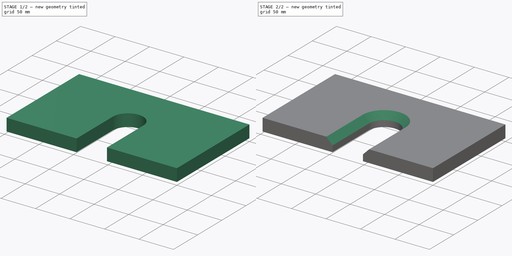
[diagram: build sequence overview — one tinted view per stage of 2, left to right]
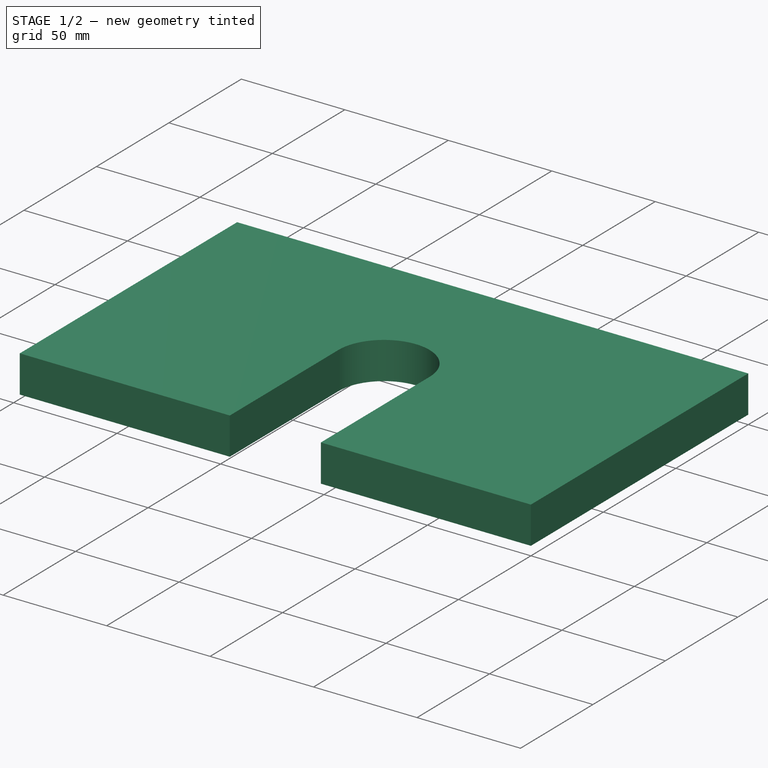
[diagram: stage 1 of 2 — iso view after this stage's code; geometry added in this stage tinted green]
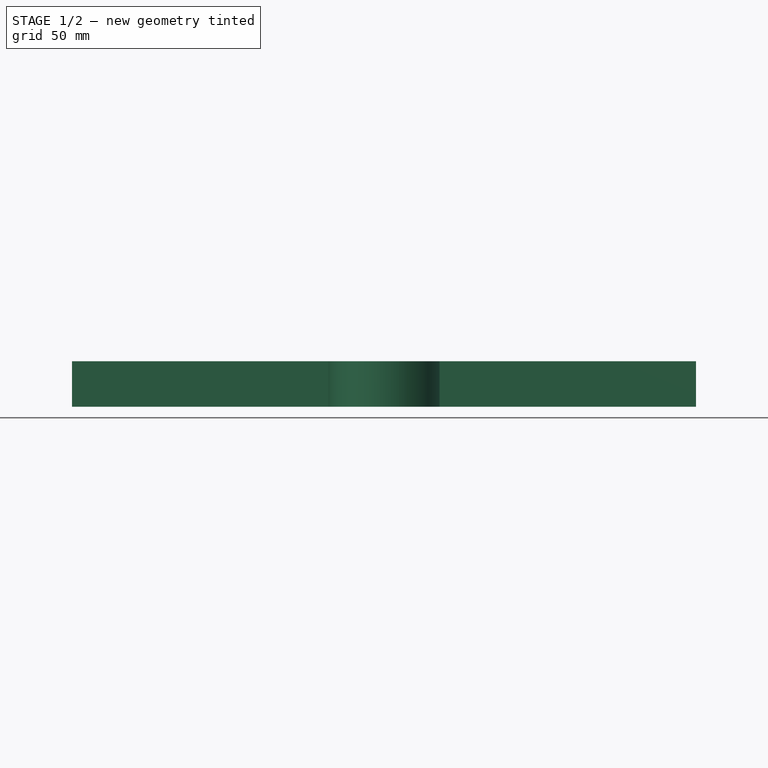
[diagram: stage 1 of 2 — front view after this stage's code; geometry added in this stage tinted green]
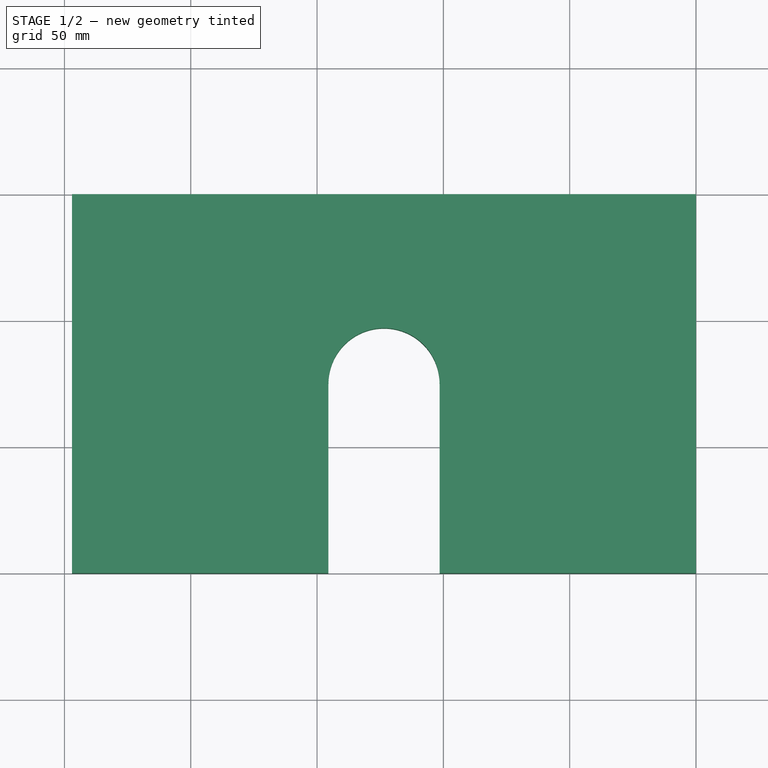
[diagram: stage 1 of 2 — top view after this stage's code; geometry added in this stage tinted green]
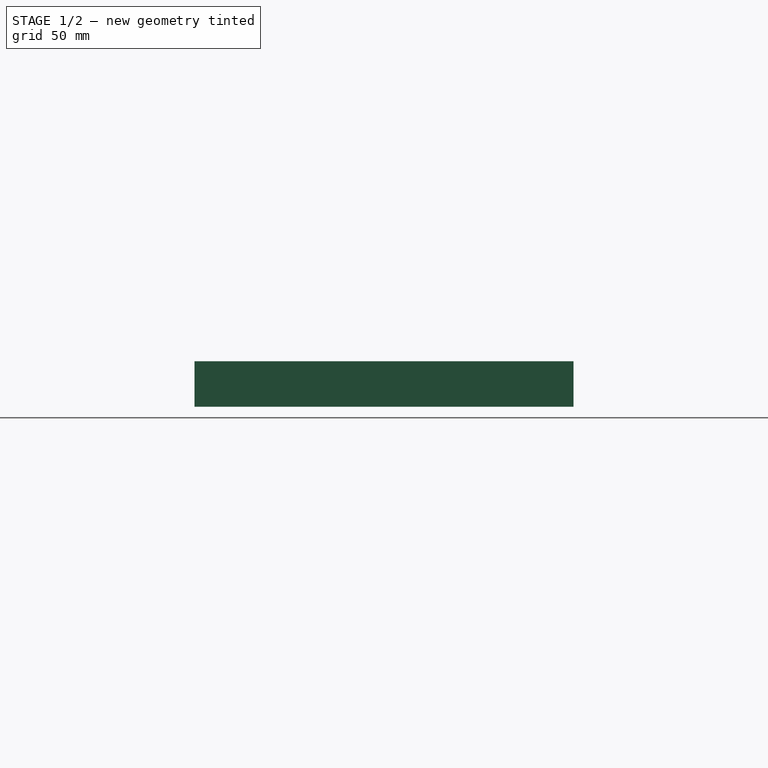
[diagram: stage 1 of 2 — right view after this stage's code; geometry added in this stage tinted green]
FCSTD DOCUMENT  (FreeCAD 0.18R4 (GitTag))
Label: top
License: All rights reserved
LicenseURL: http://en.wikipedia.org/wiki/All_rights_reserved
objects: Sketcher::SketchObject×2, PartDesign::Pad×1, PartDesign::Pocket×1, PartDesign::Chamfer×1, PartDesign::Body×1
note: 8 computed .brp shape members not serialized (recipe doc carries the construction recipe); baked Part::Feature solids carry a one-line shape summary decoded from their .brp

FEATURE [Sketcher::SketchObject] Sketch
  MapMode = 5
  Support = -> [XY_Plane]
  sketch-geometry (4):
    g0: LineSegment StartX=0 StartY=0 StartZ=0 EndX=-247 EndY=0 EndZ=0
    g1: LineSegment StartX=-247 StartY=0 StartZ=0 EndX=-247 EndY=150 EndZ=0
    g2: LineSegment StartX=-247 StartY=150 StartZ=0 EndX=0 EndY=150 EndZ=0
    g3: LineSegment StartX=0 StartY=150 StartZ=0 EndX=0 EndY=0 EndZ=0
  constraints (11):
    c: Coincident(g0,g1)
    c: Coincident(g1,g2)
    c: Coincident(g2,g3)
    c: Coincident(g3,g0)
    c: Horizontal(g0)
    c: Horizontal(g2)
    c: Vertical(g1)
    c: Vertical(g3)
    c: Coincident(g0,g-1)
    c: DistanceY(g3,g3) = 150
    c: DistanceX(g2,g2) = 247
FEATURE [PartDesign::Pad] Pad
  Length = 18
  Length2 = 100
  Profile = -> Sketch
  Type = 0
FEATURE [Sketcher::SketchObject] Sketch001
  MapMode = 5
  Placement = pos=(0,0,18) rot=(0,0,1;0rad)
  Support = -> [Pad]
  sketch-geometry (4):
    g0: ArcOfCircle CenterX=-123.5 CenterY=75 CenterZ=0 NormalX=0 NormalY=0 NormalZ=1 AngleXU=0 Radius=22 StartAngle=3e-16 EndAngle=3.14159
    g1: LineSegment StartX=-101.5 StartY=75 StartZ=0 EndX=-101.5 EndY=0 EndZ=0
    g2: LineSegment StartX=-145.5 StartY=75 StartZ=0 EndX=-145.5 EndY=0 EndZ=0
    g3: LineSegment StartX=-101.5 StartY=0 StartZ=0 EndX=-145.5 EndY=0 EndZ=0
  constraints (13):
    c: DistanceY(g-1,g0) = 75
    c: DistanceX(g0,g-1) = 123.5
    c: Coincident(g1,g0)
    c: Coincident(g2,g0)
    c: PointOnObject(g1,g-1)
    c: PointOnObject(g2,g-1)
    c: DistanceY(g0,g0) = 0
    c: DistanceY(g0,g0) = 0
    c: Vertical(g1)
    c: Vertical(g2)
    c: DistanceX(g0,g0) = 44
    c: Coincident(g3,g1)
    c: Coincident(g3,g2)
FEATURE [PartDesign::Pocket] Pocket
  BaseFeature = -> Pad
  Length = 5
  Length2 = 100
  Profile = -> Sketch001
  Type = 1
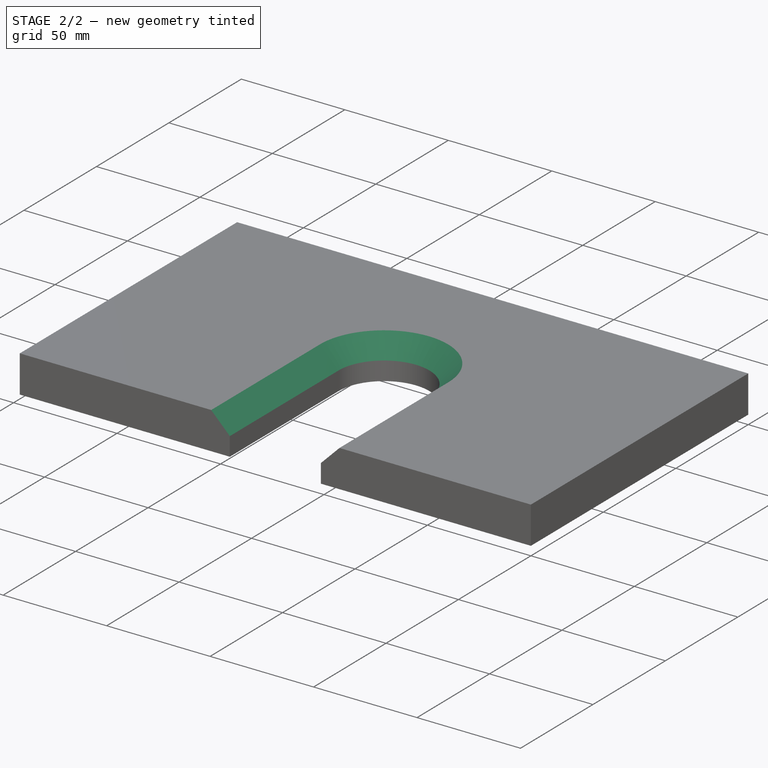
[diagram: stage 2 of 2 — iso view after this stage's code; geometry added in this stage tinted green]
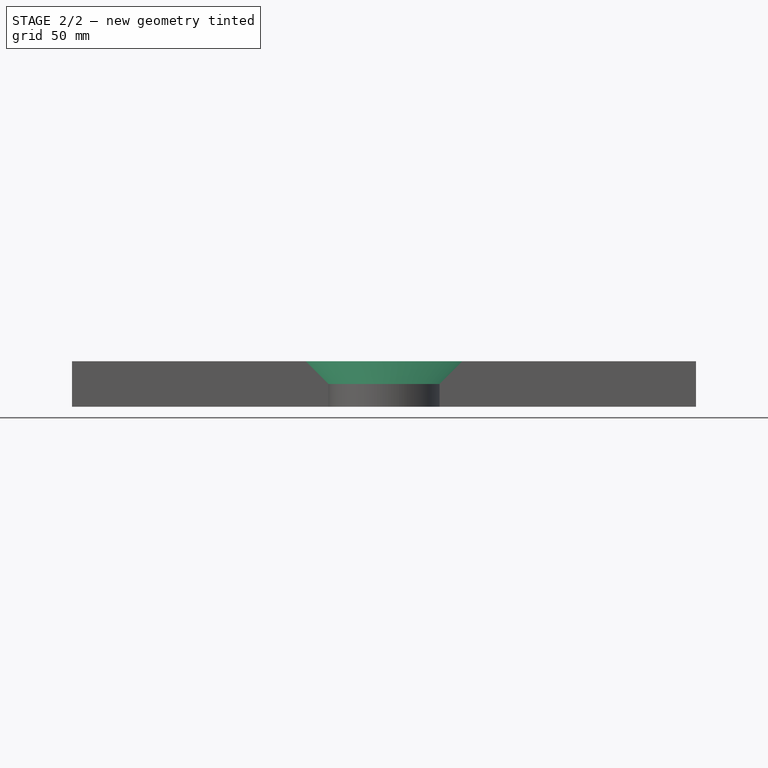
[diagram: stage 2 of 2 — front view after this stage's code; geometry added in this stage tinted green]
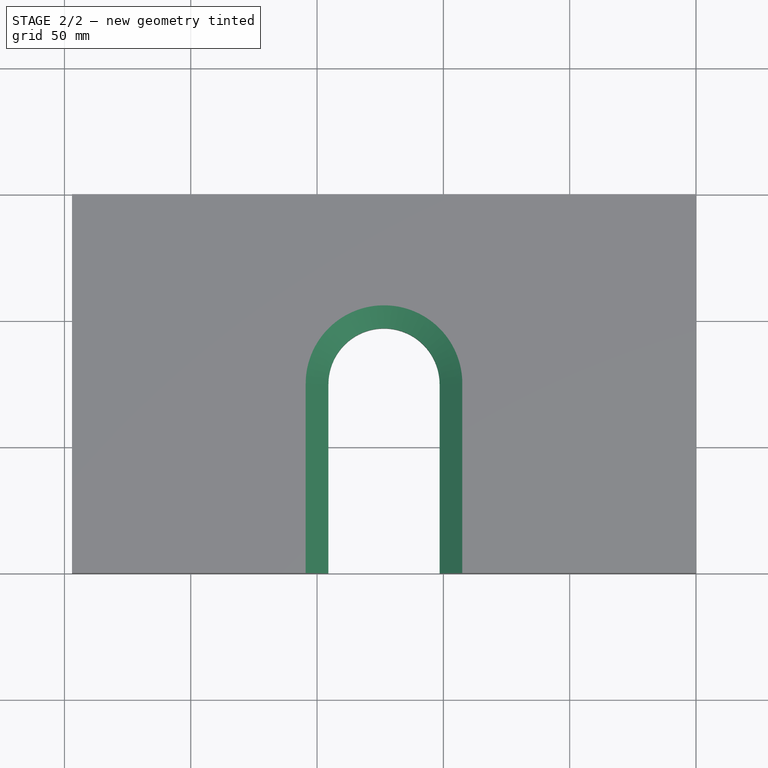
[diagram: stage 2 of 2 — top view after this stage's code; geometry added in this stage tinted green]
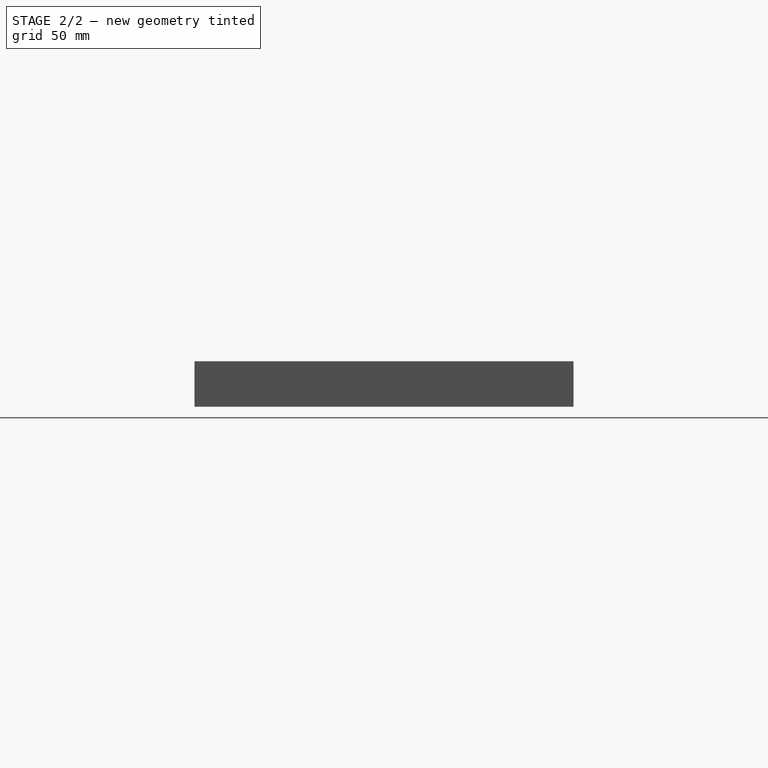
[diagram: stage 2 of 2 — right view after this stage's code; geometry added in this stage tinted green]
FEATURE [PartDesign::Chamfer] Chamfer
  Base = -> Pocket [Edge18,Edge19,Edge12]
  BaseFeature = -> Pocket
  Size = 9
FEATURE [PartDesign::Body] Body
  Group = -> [Sketch,Pad,Sketch001,Pocket,Chamfer]
  Origin = -> Origin
  Tip = -> Chamfer
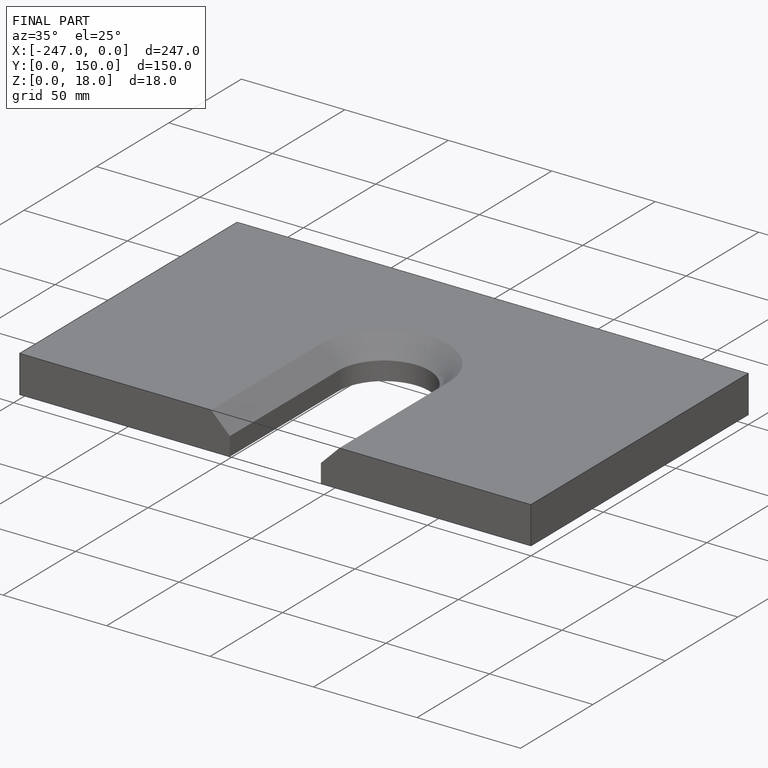
[diagram: finished part — iso view with bounding-box wireframe]
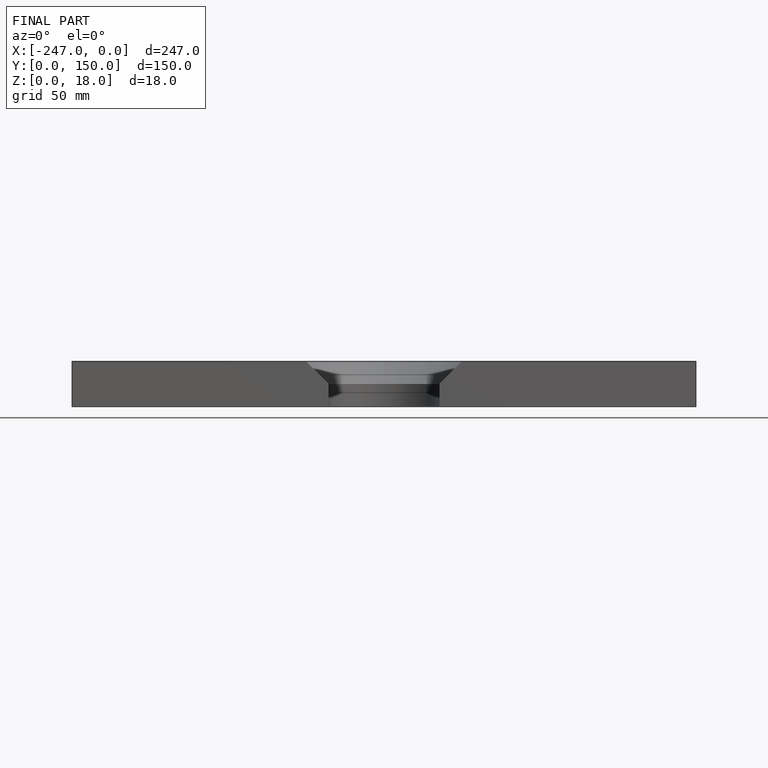
[diagram: finished part — front view with bounding-box wireframe]
